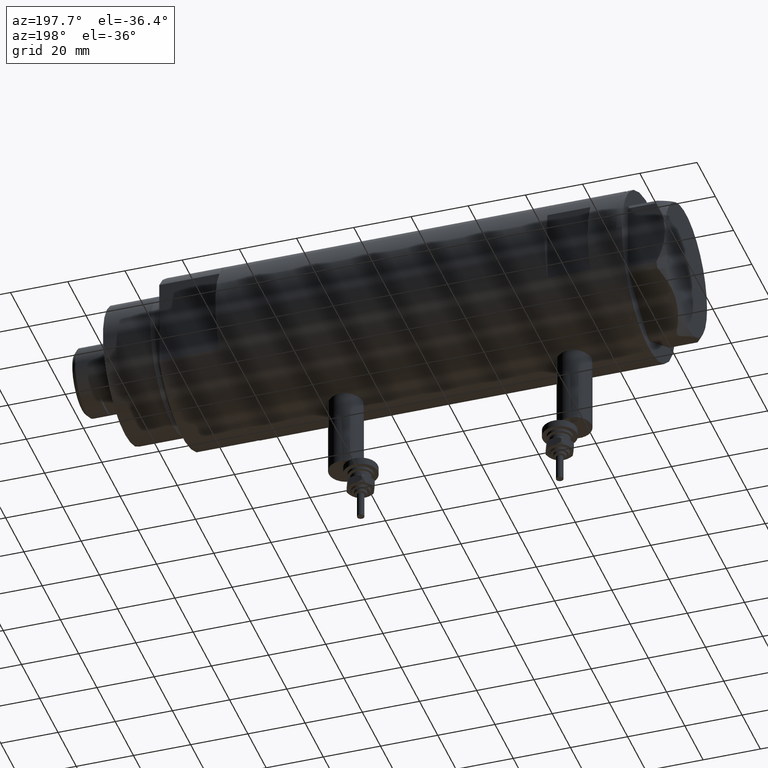
[diagram: clean part render]
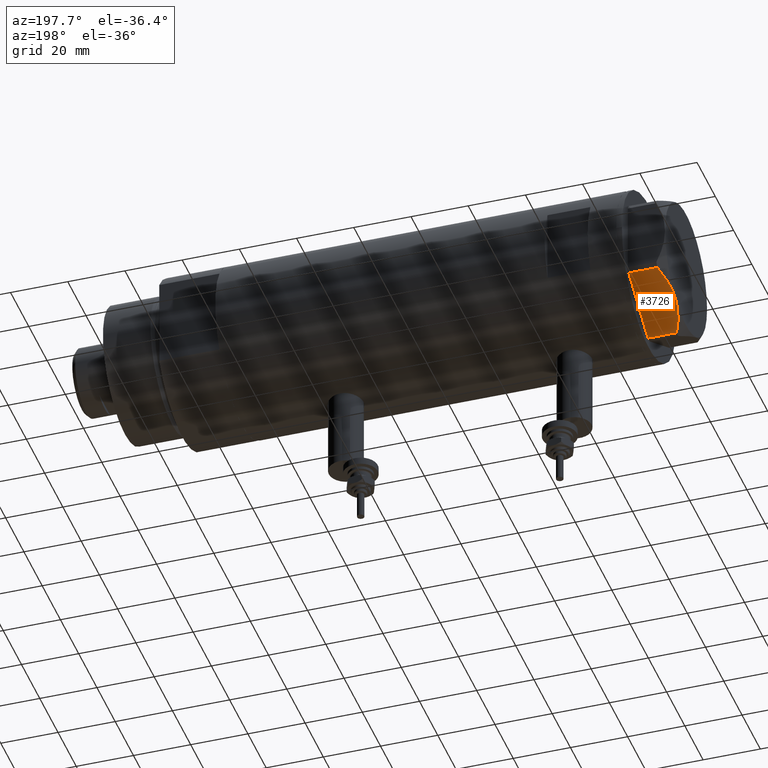
[diagram: same view with one face highlighted and labeled with its STEP entity id]
A machine part, auxiliary view. The second image highlights one B-rep face of the part: STEP entity #3726.
In plain terms, the highlighted planar face has unit normal (0, -0.5, 0.866).
Its self-contained STEP definition (entity closure, byte-faithful):
#53 = CARTESIAN_POINT ( 'NONE',  ( 20.37350567916420374, 14.79546339452108228, 10.87778242614341728 ) ) ;
#200 = ORIENTED_EDGE ( 'NONE', *, *, #5519, .F. ) ;
#348 = CARTESIAN_POINT ( 'NONE',  ( 11.49999999999990408, 19.91858428704219364, 13.00000000000000000 ) ) ;
#420 = ORIENTED_EDGE ( 'NONE', *, *, #1202, .T. ) ;
#447 = ORIENTED_EDGE ( 'NONE', *, *, #559, .T. ) ;
#558 = CARTESIAN_POINT ( 'NONE',  ( 22.99999999999981171, 13.27905619136164184, 0.000000000000000000 ) ) ;
#559 = EDGE_CURVE ( 'NONE', #587, #3897, #1017, .T. ) ;
#587 = VERTEX_POINT ( 'NONE', #3758 ) ;
#862 = CARTESIAN_POINT ( 'NONE',  ( 3.925137811030053214, 24.29193301091819279, 11.39727285399137813 ) ) ;
#894 = DIRECTION ( 'NONE',  ( -0.8660254037844415942, 0.4999999999999949485, 0.000000000000000000 ) ) ;
#1017 = LINE ( 'NONE', #558, #5342 ) ;
#1152 = EDGE_LOOP ( 'NONE', ( #200, #420, #447, #4848, #3591 ) ) ;
#1177 = FACE_OUTER_BOUND ( 'NONE', #1152, .T. ) ;
#1202 = EDGE_CURVE ( 'NONE', #1442, #587, #1589, .T. ) ;
#1212 = VERTEX_POINT ( 'NONE', #3811 ) ;
#1321 = CARTESIAN_POINT ( 'NONE',  ( 11.95865151389051384, 19.65378171203322921, 13.00000000000000355 ) ) ;
#1336 = DIRECTION ( 'NONE',  ( 0.000000000000000000, 0.000000000000000000, 1.000000000000000000 ) ) ;
#1442 = VERTEX_POINT ( 'NONE', #2527 ) ;
#1490 = EDGE_CURVE ( 'NONE', #3897, #1212, #5318, .T. ) ;
#1589 = LINE ( 'NONE', #4200, #4849 ) ;
#1677 = PLANE ( 'NONE',  #5542 ) ;
#1791 = CARTESIAN_POINT ( 'NONE',  ( 16.05322244309624224, 17.28978008384030929, 12.42689993760370015 ) ) ;
#1852 = CARTESIAN_POINT ( 'NONE',  ( 22.03005154776139207, 13.83905619136154463, 9.983800287807527596 ) ) ;
#2059 = CARTESIAN_POINT ( 'NONE',  ( 9.678244919010090541, 20.97037507344921892, 13.00000000000000888 ) ) ;
#2144 = DIRECTION ( 'NONE',  ( 0.8660254037844415942, -0.4999999999999948930, 0.000000000000000000 ) ) ;
#2197 = CARTESIAN_POINT ( 'NONE',  ( 2.640413878806743053, 25.03366871902166935, 10.84420102443836598 ) ) ;
#2332 = B_SPLINE_CURVE_WITH_KNOTS ( 'NONE', 3,
 ( #348, #2059, #3121, #3904, #3453, #5859, #862, #2197, #3184, #4521 ),
 .UNSPECIFIED., .F., .F.,
 ( 4, 2, 2, 2, 4 ),
 ( 0.01376519981810293836, 0.01998941321701560442, 0.02154546656674377267, 0.02310151991647194092, 0.02621362661592828089 ),
 .UNSPECIFIED. ) ;
#2527 = CARTESIAN_POINT ( 'NONE',  ( 22.03005154776139207, 13.83905619136154463, 9.983800287807527596 ) ) ;
#2794 = CARTESIAN_POINT ( 'NONE',  ( 15.16323225988329604, 17.80361615569442790, 12.63731396715686728 ) ) ;
#3121 = CARTESIAN_POINT ( 'NONE',  ( 7.884645426989624895, 22.00591022298558741, 12.70765172847692526 ) ) ;
#3184 = CARTESIAN_POINT ( 'NONE',  ( 1.799196345396830266, 25.51934588838290452, 10.43131750950938930 ) ) ;
#3355 = VECTOR ( 'NONE', #1336, 1000.000000000000000 ) ;
#3422 = DIRECTION ( 'NONE',  ( 0.000000000000000000, 0.000000000000000000, -1.000000000000000000 ) ) ;
#3453 = CARTESIAN_POINT ( 'NONE',  ( 5.229981517798068857, 23.53858114556529912, 11.89212886775839451 ) ) ;
#3591 = ORIENTED_EDGE ( 'NONE', *, *, #3752, .F. ) ;
#3604 = CARTESIAN_POINT ( 'NONE',  ( 13.34348161667004362, 18.85424967941157703, 12.90784227772834392 ) ) ;
#3675 = CARTESIAN_POINT ( 'NONE',  ( 12.41906678023027055, 19.38796083407295612, 12.98168640760940562 ) ) ;
#3726 = ADVANCED_FACE ( 'NONE', ( #1177 ), #1677, .F. ) ;
#3752 = EDGE_CURVE ( 'NONE', #4277, #1212, #2332, .T. ) ;
#3758 = CARTESIAN_POINT ( 'NONE',  ( 22.03005154776124996, 13.83905619136162635, 0.000000000000000000 ) ) ;
#3811 = CARTESIAN_POINT ( 'NONE',  ( 0.9699484522385838359, 25.99811238272274139, 9.983800287807635954 ) ) ;
#3897 = VERTEX_POINT ( 'NONE', #5295 ) ;
#3904 = CARTESIAN_POINT ( 'NONE',  ( 5.671686373602804920, 23.28356272816407113, 12.04068176582928018 ) ) ;
#4119 = CARTESIAN_POINT ( 'NONE',  ( 11.49999999999990408, 19.91858428704219364, 13.00000000000000000 ) ) ;
#4200 = CARTESIAN_POINT ( 'NONE',  ( 22.03005154776124996, 13.83905619136162635, 13.00000000000000000 ) ) ;
#4277 = VERTEX_POINT ( 'NONE', #4393 ) ;
#4393 = CARTESIAN_POINT ( 'NONE',  ( 11.49999999999990408, 19.91858428704219364, 13.00000000000000000 ) ) ;
#4430 = DIRECTION ( 'NONE',  ( -0.4999999999999948930, -0.8660254037844415942, 0.000000000000000000 ) ) ;
#4500 = CARTESIAN_POINT ( 'NONE',  ( 18.67981377008996802, 15.77331687414936567, 11.62937486882604965 ) ) ;
#4521 = CARTESIAN_POINT ( 'NONE',  ( 0.9699484522385838359, 25.99811238272274139, 9.983800287807635954 ) ) ;
#4607 = CARTESIAN_POINT ( 'NONE',  ( 13.80210138309696788, 18.58946543380931260, 12.85271263895571181 ) ) ;
#4848 = ORIENTED_EDGE ( 'NONE', *, *, #1490, .T. ) ;
#4849 = VECTOR ( 'NONE', #3422, 1000.000000000000000 ) ;
#5295 = CARTESIAN_POINT ( 'NONE',  ( 0.9699484522385886098, 25.99811238272273783, 0.000000000000000000 ) ) ;
#5318 = LINE ( 'NONE', #5494, #3355 ) ;
#5342 = VECTOR ( 'NONE', #894, 999.9999999999998863 ) ;
#5494 = CARTESIAN_POINT ( 'NONE',  ( 0.9699484522385886098, 25.99811238272273783, 13.00000000000000000 ) ) ;
#5519 = EDGE_CURVE ( 'NONE', #1442, #4277, #5683, .T. ) ;
#5542 = AXIS2_PLACEMENT_3D ( 'NONE', #5782, #4430, #2144 ) ;
#5683 = B_SPLINE_CURVE_WITH_KNOTS ( 'NONE', 3,
 ( #1852, #53, #4500, #1791, #2794, #4607, #3604, #3675, #1321, #4119 ),
 .UNSPECIFIED., .F., .F.,
 ( 4, 2, 2, 2, 4 ),
 ( 0.001228959670438484414, 0.007497079744270713011, 0.01063113978118682308, 0.01219816979964488159, 0.01376519981810293836 ),
 .UNSPECIFIED. ) ;
#5782 = CARTESIAN_POINT ( 'NONE',  ( 22.99999999999981171, 13.27905619136164184, 13.00000000000000000 ) ) ;
#5859 = CARTESIAN_POINT ( 'NONE',  ( 4.357207709416042185, 24.04247733877631887, 11.57055225522968378 ) ) ;